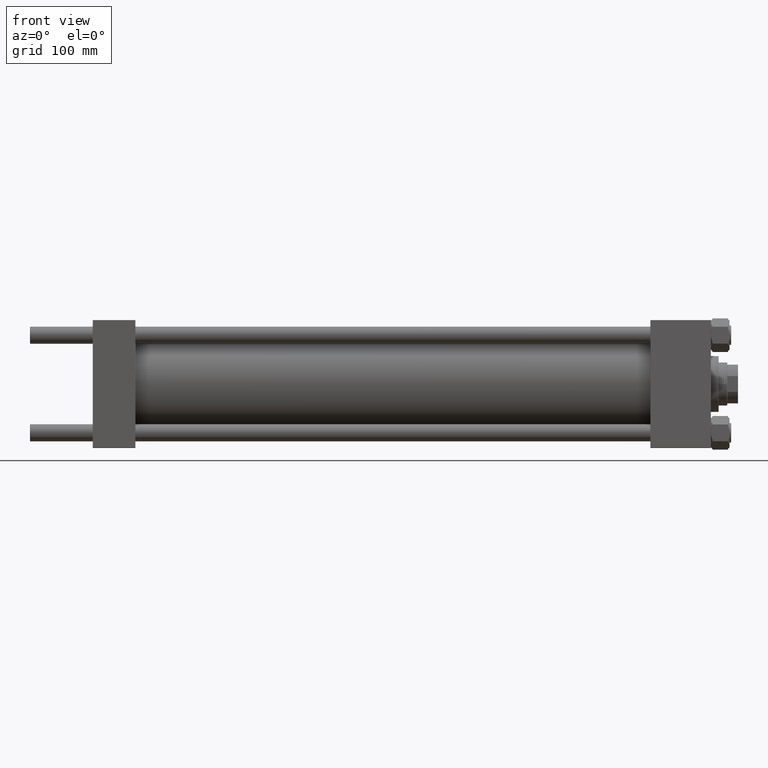
[diagram: clean part render]
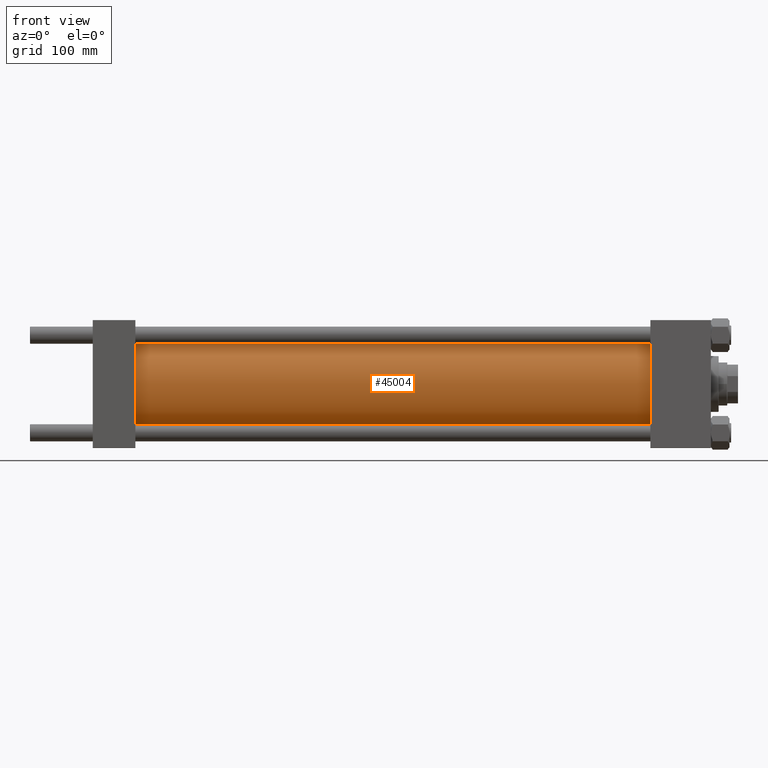
[diagram: same view with one face highlighted and labeled with its STEP entity id]
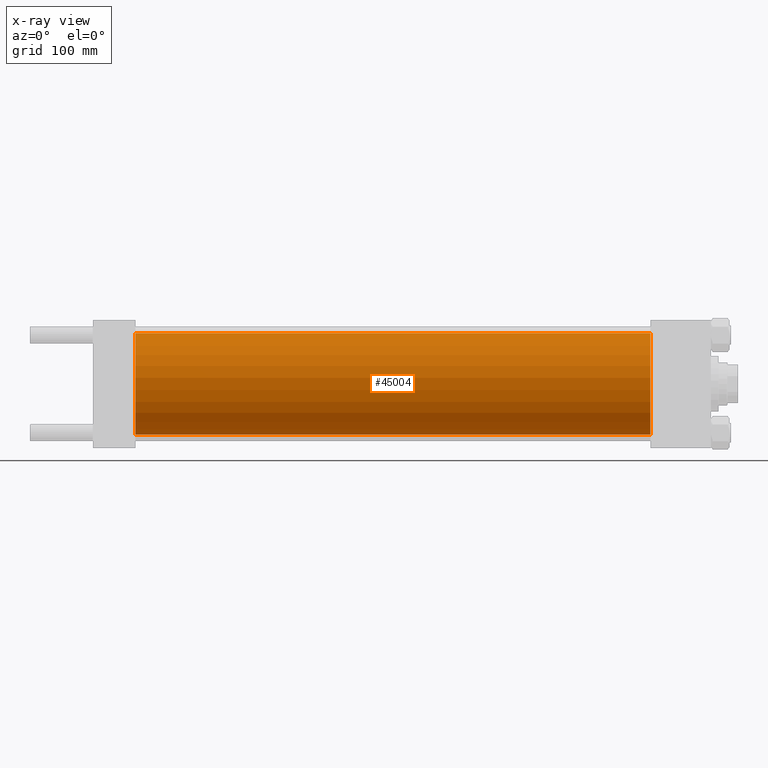
[diagram: x-ray of the same camera — body ghosted, the highlighted face saturated]
A machine part, front view. The second image highlights one B-rep face of the part: STEP entity #45004.
The next image is the same camera in x-ray: the body ghosted, the highlighted face saturated — about 0% of this face is hidden behind the body in this view.
In plain terms, the highlighted cylindrical surface (partial cylindrical patch) has radius 65.5 mm, axis along (-1, -0, -0).
Its self-contained STEP definition (entity closure, byte-faithful):
#287 = AXIS2_PLACEMENT_3D ( 'NONE', #24279, #1353, #16616 ) ;
#971 = DIRECTION ( 'NONE',  ( -1.000000000000000000, -0.000000000000000000, -0.000000000000000000 ) ) ;
#1353 = DIRECTION ( 'NONE',  ( 1.000000000000000000, -0.000000000000000000, -0.000000000000000000 ) ) ;
#2706 = EDGE_LOOP ( 'NONE', ( #21842, #28771, #17644, #18896 ) ) ;
#2729 = CARTESIAN_POINT ( 'NONE',  ( 719.0000000000001137, 8.021436534415166404E-15, -65.50000000000001421 ) ) ;
#3519 = CIRCLE ( 'NONE', #287, 65.50000000000001421 ) ;
#6199 = CARTESIAN_POINT ( 'NONE',  ( 719.0000000000001137, 0.000000000000000000, 65.50000000000001421 ) ) ;
#9433 = CARTESIAN_POINT ( 'NONE',  ( 719.0000000000001137, 0.000000000000000000, 0.000000000000000000 ) ) ;
#10373 = DIRECTION ( 'NONE',  ( -1.000000000000000000, -0.000000000000000000, -0.000000000000000000 ) ) ;
#11935 = CARTESIAN_POINT ( 'NONE',  ( 719.0000000000001137, 8.021436534415166404E-15, -65.50000000000001421 ) ) ;
#12407 = VECTOR ( 'NONE', #10373, 1000.000000000000000 ) ;
#12904 = CARTESIAN_POINT ( 'NONE',  ( 719.0000000000001137, 0.000000000000000000, 65.50000000000001421 ) ) ;
#16059 = CARTESIAN_POINT ( 'NONE',  ( 55.00000000000004974, 8.021436534415166404E-15, -65.50000000000001421 ) ) ;
#16314 = DIRECTION ( 'NONE',  ( -1.000000000000000000, -0.000000000000000000, -0.000000000000000000 ) ) ;
#16562 = CYLINDRICAL_SURFACE ( 'NONE', #41793, 65.50000000000001421 ) ;
#16616 = DIRECTION ( 'NONE',  ( 0.000000000000000000, 0.000000000000000000, 1.000000000000000000 ) ) ;
#16634 = VERTEX_POINT ( 'NONE', #47286 ) ;
#17009 = VERTEX_POINT ( 'NONE', #6199 ) ;
#17490 = LINE ( 'NONE', #12904, #40810 ) ;
#17644 = ORIENTED_EDGE ( 'NONE', *, *, #36163, .T. ) ;
#18896 = ORIENTED_EDGE ( 'NONE', *, *, #43749, .T. ) ;
#20986 = EDGE_CURVE ( 'NONE', #17009, #45204, #47455, .T. ) ;
#21842 = ORIENTED_EDGE ( 'NONE', *, *, #37283, .F. ) ;
#24279 = CARTESIAN_POINT ( 'NONE',  ( 55.00000000000004974, 0.000000000000000000, 0.000000000000000000 ) ) ;
#28771 = ORIENTED_EDGE ( 'NONE', *, *, #20986, .F. ) ;
#31332 = DIRECTION ( 'NONE',  ( 1.000000000000000000, 0.000000000000000000, 0.000000000000000000 ) ) ;
#32085 = FACE_OUTER_BOUND ( 'NONE', #2706, .T. ) ;
#36163 = EDGE_CURVE ( 'NONE', #17009, #16634, #17490, .T. ) ;
#37283 = EDGE_CURVE ( 'NONE', #45204, #43962, #37575, .T. ) ;
#37575 = LINE ( 'NONE', #2729, #12407 ) ;
#40810 = VECTOR ( 'NONE', #971, 1000.000000000000000 ) ;
#41793 = AXIS2_PLACEMENT_3D ( 'NONE', #9433, #16314, #48078 ) ;
#41802 = AXIS2_PLACEMENT_3D ( 'NONE', #42768, #31332, #43518 ) ;
#42768 = CARTESIAN_POINT ( 'NONE',  ( 719.0000000000001137, 0.000000000000000000, 0.000000000000000000 ) ) ;
#43518 = DIRECTION ( 'NONE',  ( 0.000000000000000000, 0.000000000000000000, -1.000000000000000000 ) ) ;
#43749 = EDGE_CURVE ( 'NONE', #16634, #43962, #3519, .T. ) ;
#43962 = VERTEX_POINT ( 'NONE', #16059 ) ;
#45004 = ADVANCED_FACE ( 'NONE', ( #32085 ), #16562, .T. ) ;
#45204 = VERTEX_POINT ( 'NONE', #11935 ) ;
#47286 = CARTESIAN_POINT ( 'NONE',  ( 55.00000000000004974, 0.000000000000000000, 65.50000000000001421 ) ) ;
#47455 = CIRCLE ( 'NONE', #41802, 65.50000000000001421 ) ;
#48078 = DIRECTION ( 'NONE',  ( 0.000000000000000000, 0.000000000000000000, 1.000000000000000000 ) ) ;